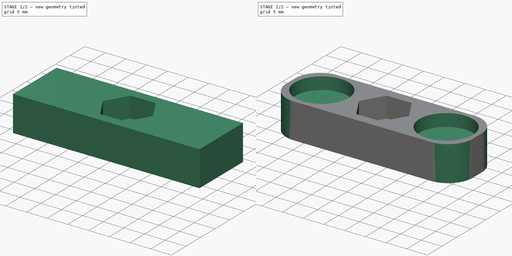
[diagram: build sequence overview — one tinted view per stage of 2, left to right]
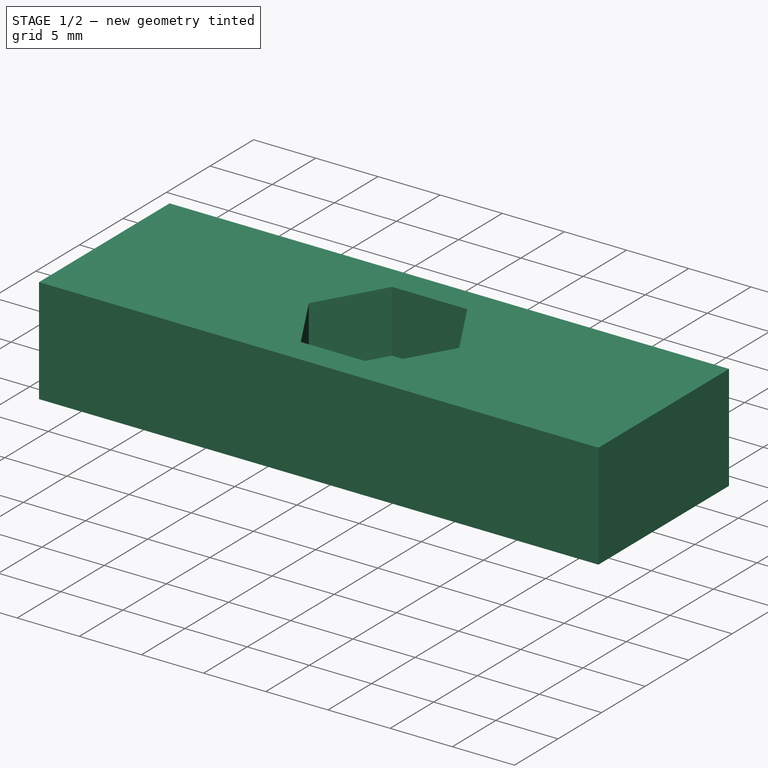
[diagram: stage 1 of 2 — iso view after this stage's code; geometry added in this stage tinted green]
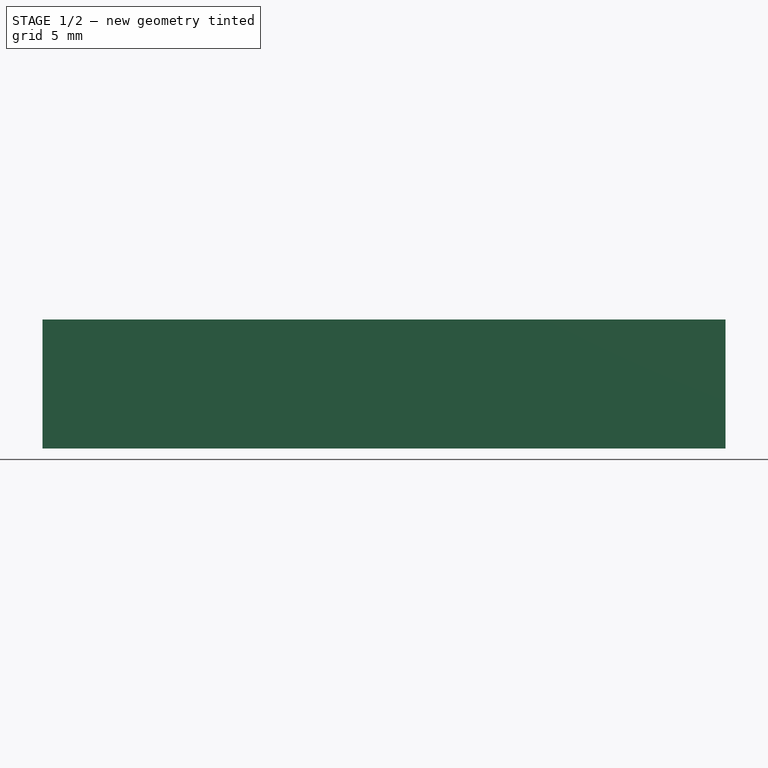
[diagram: stage 1 of 2 — front view after this stage's code; geometry added in this stage tinted green]
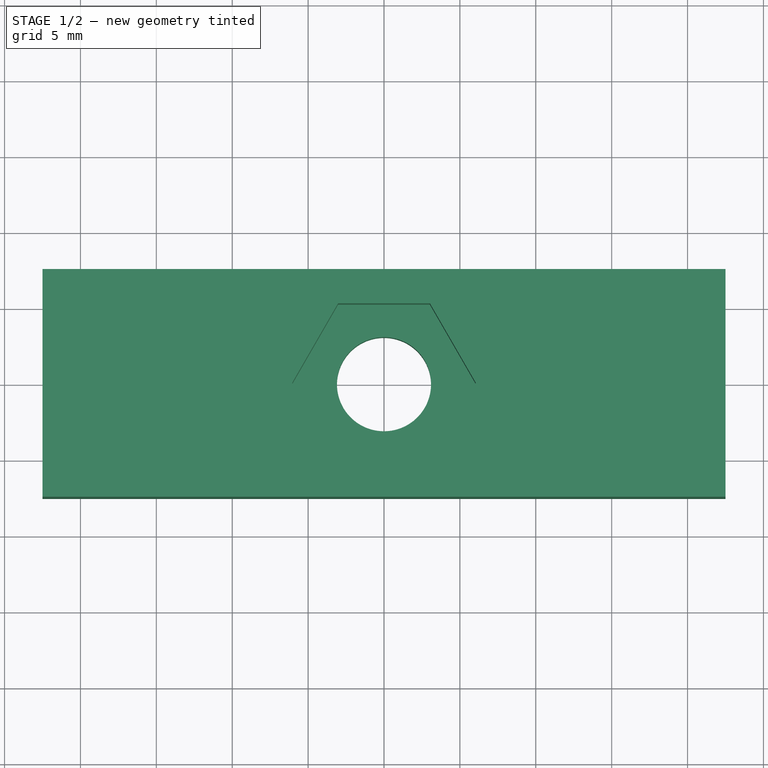
[diagram: stage 1 of 2 — top view after this stage's code; geometry added in this stage tinted green]
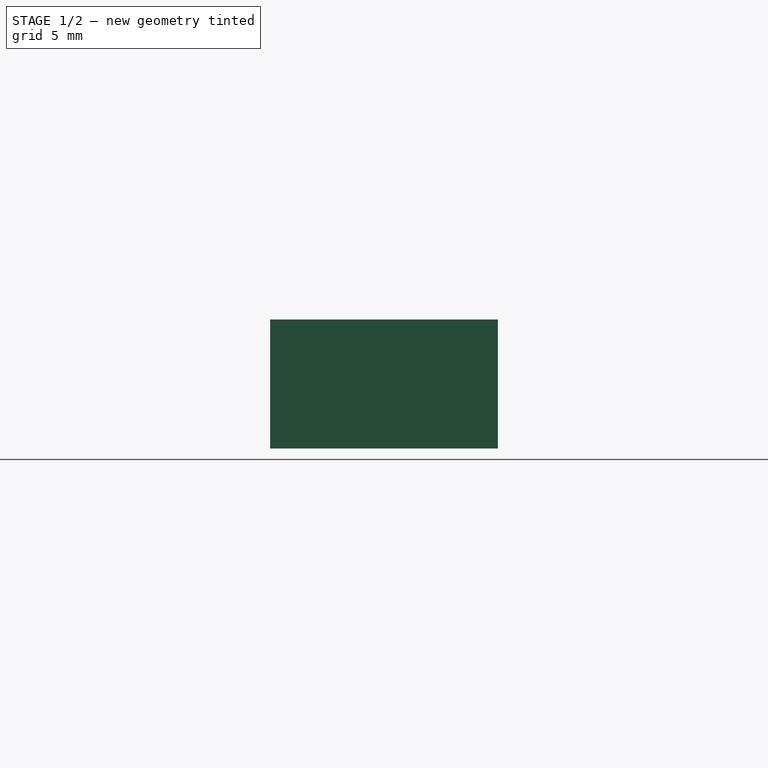
[diagram: stage 1 of 2 — right view after this stage's code; geometry added in this stage tinted green]
FCSTD DOCUMENT  (FreeCAD 0.16R6707 (Git))
Label: magnets_mount
License: All rights reserved
LicenseURL: http://en.wikipedia.org/wiki/All_rights_reserved
objects: Sketcher::SketchObject×3, PartDesign::Pocket×2, PartDesign::Pad×1, PartDesign::Fillet×1
note: 10 computed .brp shape members not serialized (recipe doc carries the construction recipe); baked Part::Feature solids carry a one-line shape summary decoded from their .brp

FEATURE [Sketcher::SketchObject] Sketch  label="Base"
  sketch-geometry (5):
    g0: LineSegment StartX=-22.5 StartY=7.5 StartZ=0 EndX=22.5 EndY=7.5 EndZ=0
    g1: LineSegment StartX=22.5 StartY=7.5 StartZ=0 EndX=22.5 EndY=-7.5 EndZ=0
    g2: LineSegment StartX=22.5 StartY=-7.5 StartZ=0 EndX=-22.5 EndY=-7.5 EndZ=0
    g3: LineSegment StartX=-22.5 StartY=-7.5 StartZ=0 EndX=-22.5 EndY=7.5 EndZ=0
    g4: Circle CenterX=0 CenterY=0 CenterZ=0 NormalX=0 NormalY=0 NormalZ=1 Radius=3.1
  constraints (15):
    c: Coincident(g0,g1)
    c: Coincident(g1,g2)
    c: Coincident(g2,g3)
    c: Coincident(g3,g0)
    c: Horizontal(g0)
    c: Horizontal(g2)
    c: Vertical(g1)
    c: Vertical(g3)
    c: Symmetric(g0,g0,g-2)
    c: Symmetric(g2,g0,g-1)
    c: Symmetric(g1,g2,g-2)
    c: DistanceY(g2,g0) = 15
    c: Coincident(g4,g-1)
    c: Radius(g4) = 3.1
    c: DistanceX(g0,g0) = 45
FEATURE [PartDesign::Pad] Pad
  Length = 8.5
  Length2 = 100
  Sketch = -> Sketch
  Type = 0
FEATURE [Sketcher::SketchObject] Sketch001  label="Nut"
  Placement = pos=(0,0,8.5) rot=(0,0,1;0rad)
  Support = -> Pad [Face7]
  sketch-geometry (7):
    g0: LineSegment StartX=3.025 StartY=-5.23945 StartZ=0 EndX=6.05 EndY=0 EndZ=0
    g1: LineSegment StartX=6.05 StartY=0 StartZ=0 EndX=3.025 EndY=5.23945 EndZ=0
    g2: LineSegment StartX=3.025 StartY=5.23945 StartZ=0 EndX=-3.025 EndY=5.23945 EndZ=0
    g3: LineSegment StartX=-3.025 StartY=5.23945 StartZ=0 EndX=-6.05 EndY=0 EndZ=0
    g4: LineSegment StartX=-6.05 StartY=0 StartZ=0 EndX=-3.025 EndY=-5.23945 EndZ=0
    g5: LineSegment StartX=-3.025 StartY=-5.23945 StartZ=0 EndX=3.025 EndY=-5.23945 EndZ=0
    g6: Circle [constr] CenterX=0 CenterY=0 CenterZ=0 NormalX=0 NormalY=0 NormalZ=1 Radius=6.05
  constraints (16):
    c: Coincident(g0,g1)
    c: Coincident(g1,g2)
    c: Coincident(g2,g3)
    c: Coincident(g3,g4)
    c: Coincident(g4,g5)
    c: Coincident(g5,g0)
    c: Equal(g0, g1-g5) x5
    c: PointOnObject(g0,g6)
    c: PointOnObject(g1,g6)
    c: PointOnObject(g2,g6)
    c: PointOnObject(g3,g6)
    c: PointOnObject(g4,g6)
    c: PointOnObject(g5,g6)
    c: Coincident(g6,g-1)
    c: PointOnObject(g0,g-1)
    c: Radius(g6) = 6.05
FEATURE [PartDesign::Pocket] Pocket
  Length = 5
  Sketch = -> Sketch001
  Type = 0
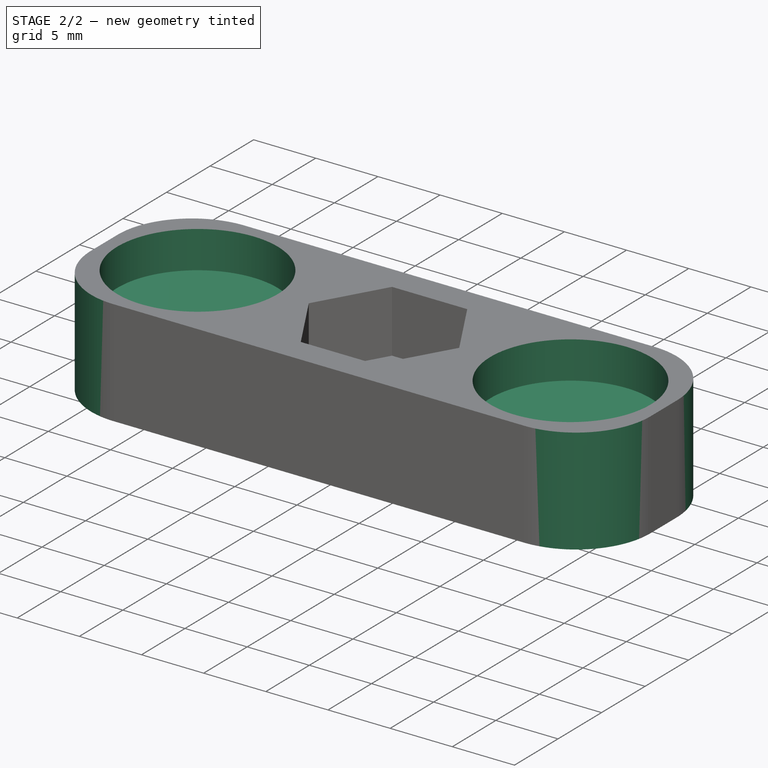
[diagram: stage 2 of 2 — iso view after this stage's code; geometry added in this stage tinted green]
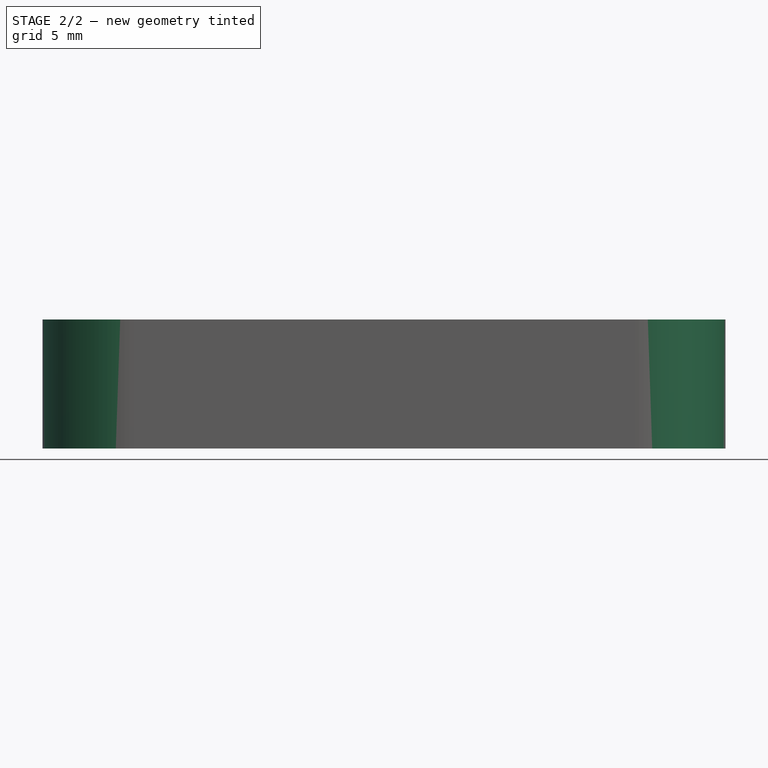
[diagram: stage 2 of 2 — front view after this stage's code; geometry added in this stage tinted green]
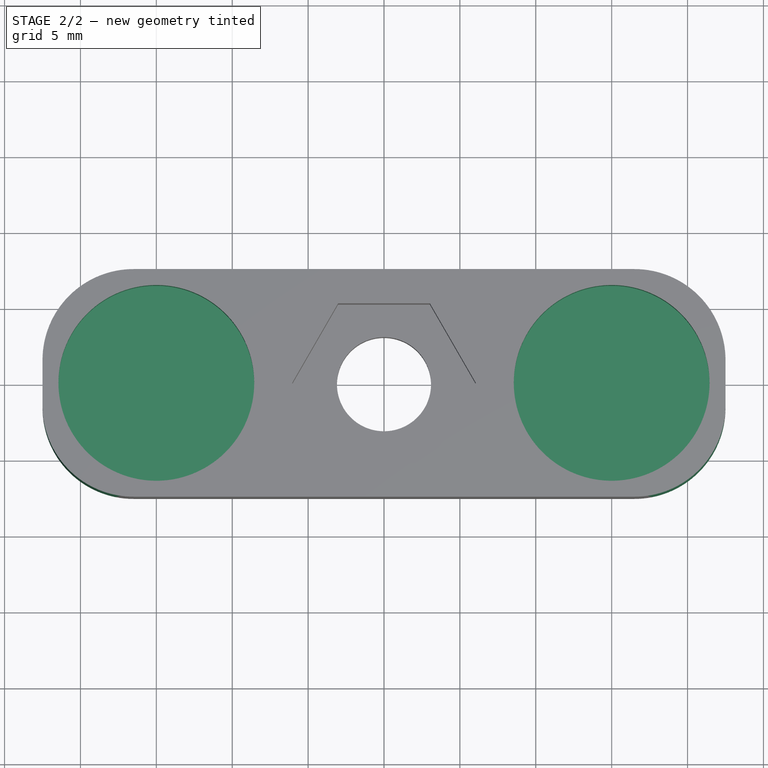
[diagram: stage 2 of 2 — top view after this stage's code; geometry added in this stage tinted green]
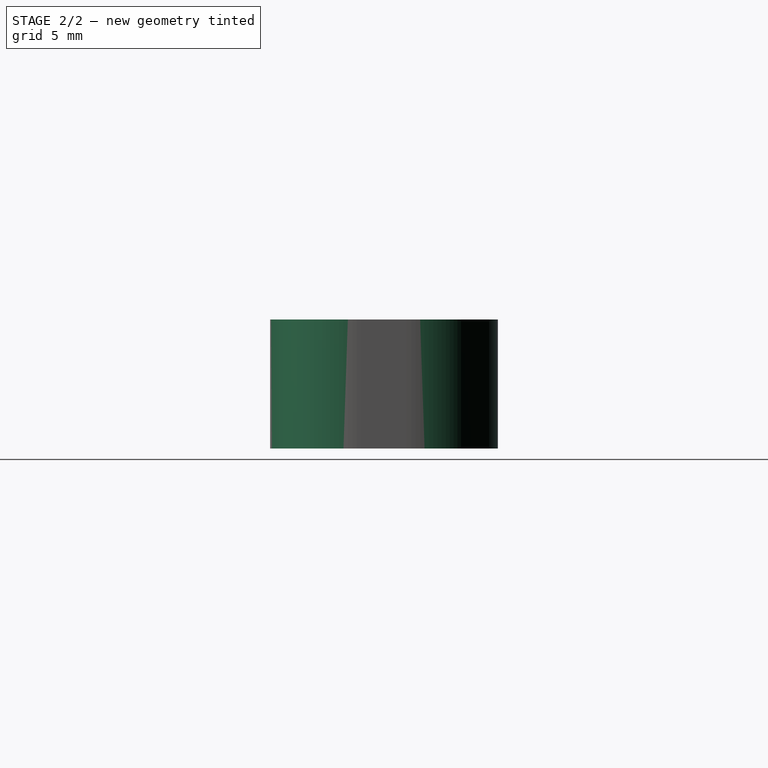
[diagram: stage 2 of 2 — right view after this stage's code; geometry added in this stage tinted green]
FEATURE [Sketcher::SketchObject] Sketch002  label="Magnets"
  Placement = pos=(0,0,8.5) rot=(0,0,1;0rad)
  Support = -> Pocket [Face5]
  sketch-geometry (2):
    g0: Circle CenterX=15 CenterY=0 CenterZ=0 NormalX=0 NormalY=0 NormalZ=1 Radius=6.45
    g1: Circle CenterX=-15 CenterY=0 CenterZ=0 NormalX=0 NormalY=0 NormalZ=1 Radius=6.45
  constraints (6):
    c: PointOnObject(g0,g-1)
    c: PointOnObject(g1,g-1)
    c: Radius(g1) = 6.45
    c: Equal(g1,g0)
    c: Symmetric(g1,g0,g-2)
    c: DistanceX(g1,g0) = 30
FEATURE [PartDesign::Pocket] Pocket001
  Length = 3
  Sketch = -> Sketch002
  Type = 0
FEATURE [PartDesign::Fillet] Fillet
  Base = -> Pocket001 [Edge5,Edge1,Edge2,Edge8]
  Radius = 6
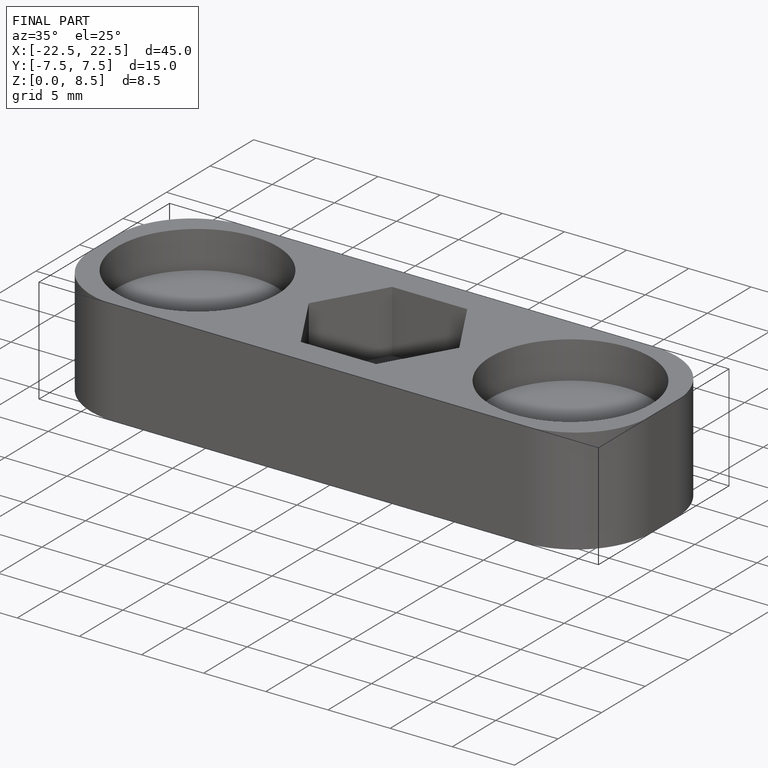
[diagram: finished part — iso view with bounding-box wireframe]
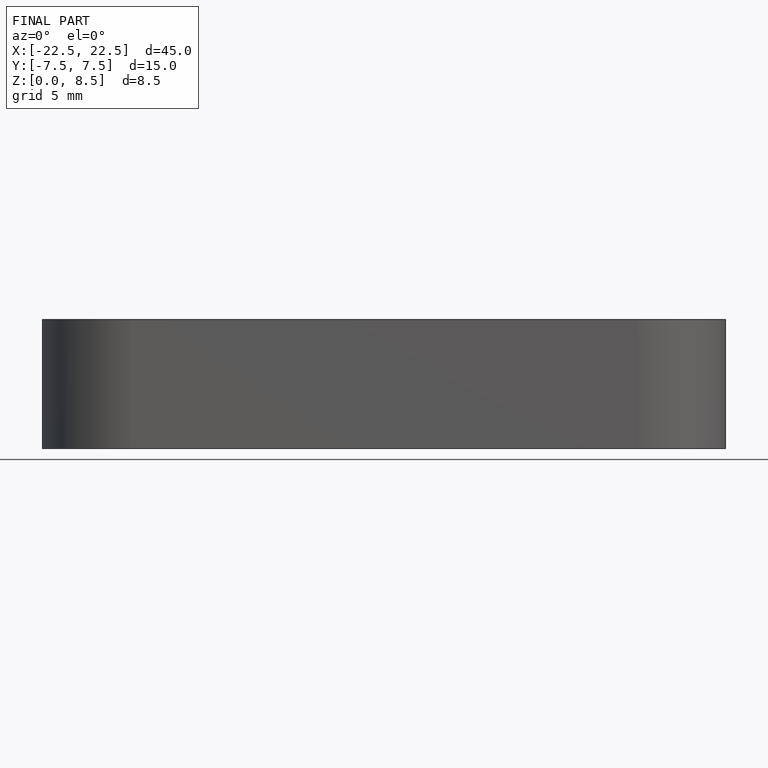
[diagram: finished part — front view with bounding-box wireframe]
